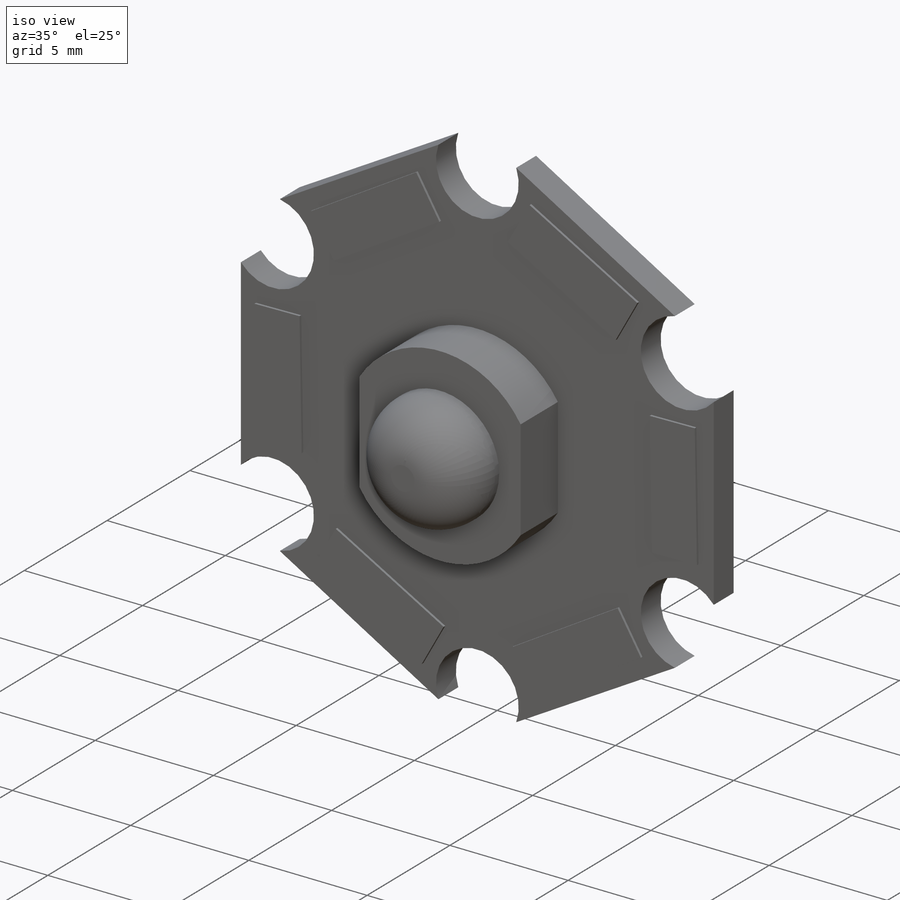
[diagram: iso view]
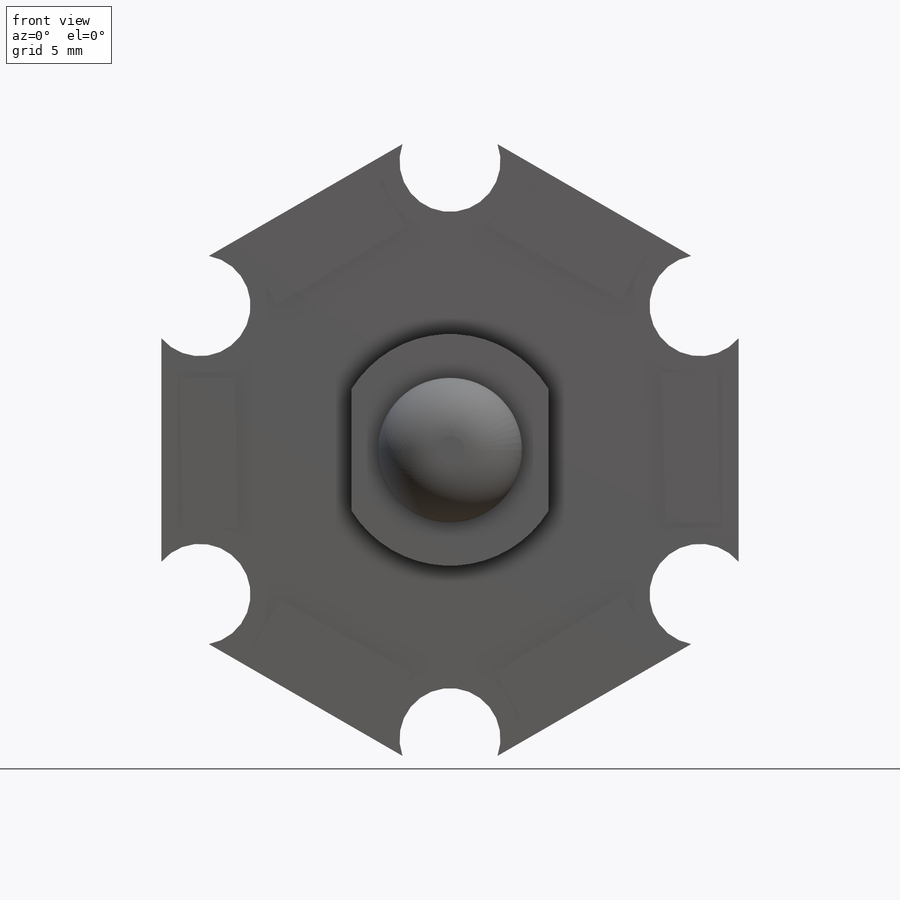
[diagram: front view]
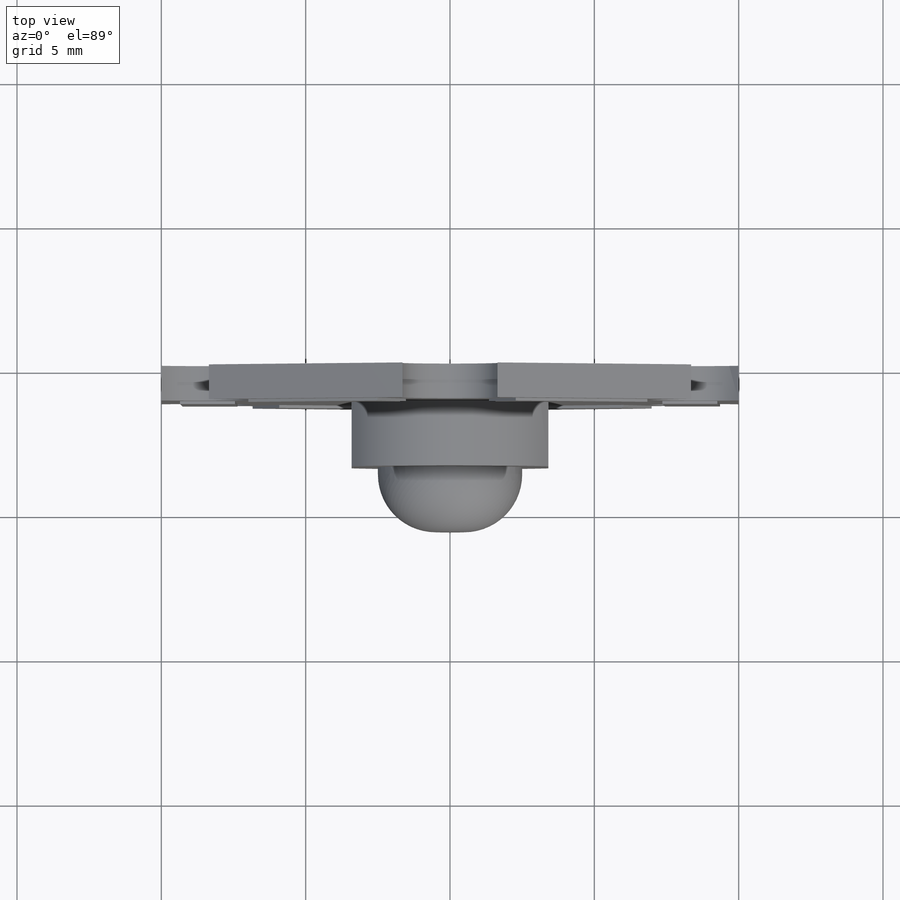
[diagram: top view]
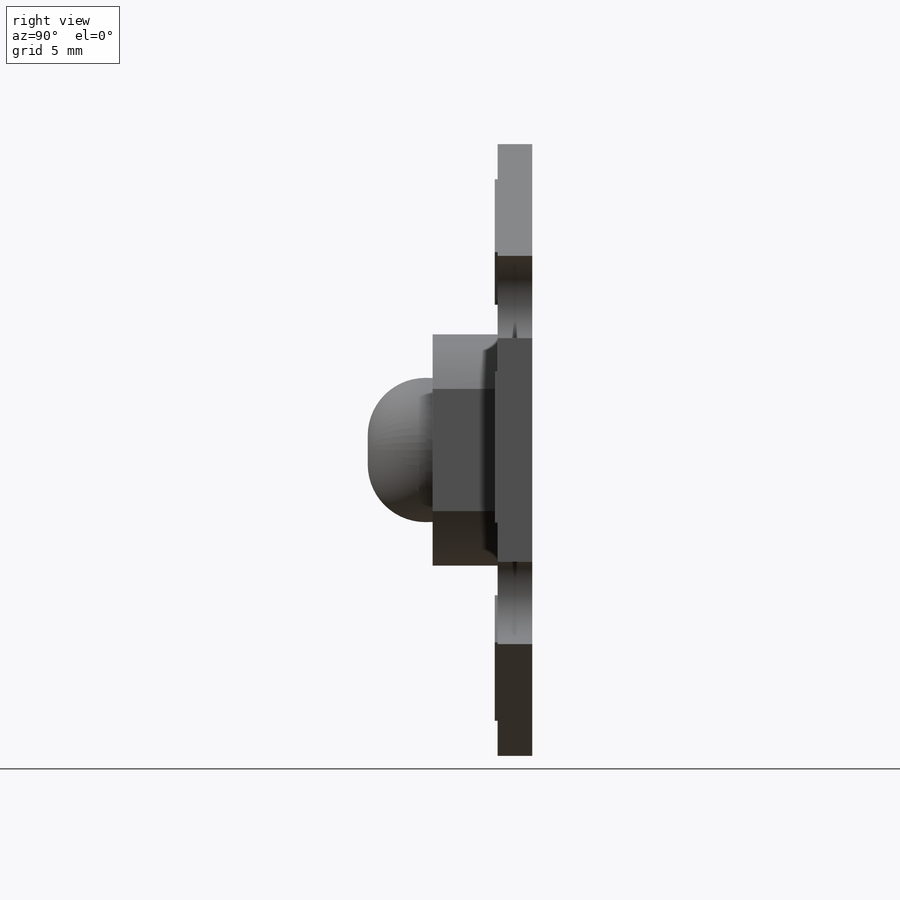
[diagram: right view]
SOLIDWORKS PART (.sldprt)
format: sldprt  version: not decoded by parser v0  size: 274,944 bytes
history: native  units: mm
features: sketch x4, extrude x4, plane x3, material x1, fillet x1 (+10 scaffold rows collapsed)
feature tree (23):
  scaffold x10  (default folders/planes/origin — collapsed)
  material  "Aleación 1060"
  plane  "Alzado"
  plane  "Planta"
  plane  "Vista lateral"
  sketch  "Croquis1"  dims[D2=3.5mm D1=20.0mm D3=19.5mm D4=6.0]
  extrude  "Saliente-Extruir1"  Depth=1.2mm
  sketch  "Croquis2"  dims[D1=6.0]
  extrude  "Saliente-Extruir2"  Depth=0.1mm
  sketch  "Croquis3"
  extrude  "Saliente-Extruir3"  Depth=2.25mm
  sketch  "Croquis4"  dims[D1=~2.426354mm]
  extrude  "Saliente-Extruir4"  Depth=2.25mm
  fillet  "Redondeo4"  Radius=2mm
decode coverage: 8 of 9 modeling features carry decoded parameters
note: ~ marks probable driven/reference dimensions
note: suppression state not decoded; provenance and decode notes live in map.json
